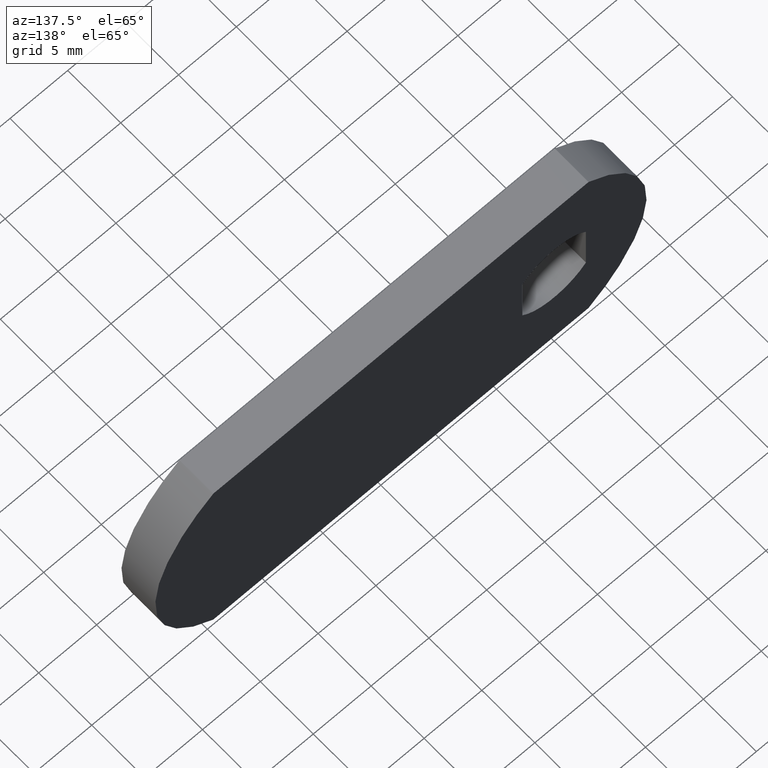
[diagram: clean part render]
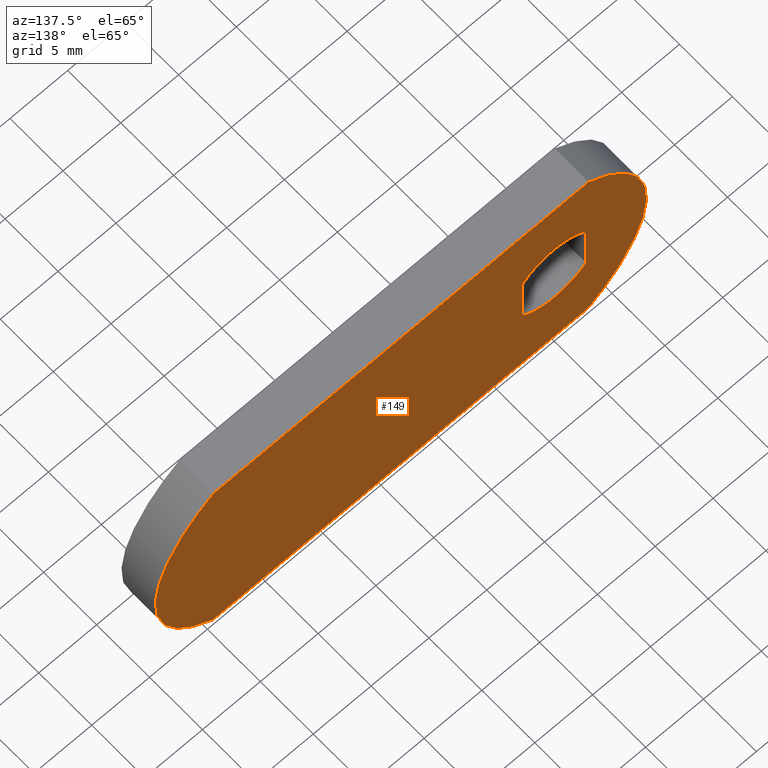
[diagram: same view with one face highlighted and labeled with its STEP entity id]
A machine part, auxiliary view. The second image highlights one B-rep face of the part: STEP entity #149.
In plain terms, the highlighted face is a freeform B-spline surface patch.
Its self-contained STEP definition (entity closure, byte-faithful):
#44=CARTESIAN_POINT('',(-10.122874917626749,0.0,10.449049963174311));
#45=CARTESIAN_POINT('',(36.622876057565577,0.0,10.449049963174311));
#46=CARTESIAN_POINT('',(-10.122874917626749,0.0,-10.449050472794029));
#47=CARTESIAN_POINT('',(36.622876057565577,0.0,-10.449050472794029));
#48=B_SPLINE_SURFACE_WITH_KNOTS('',1,1,((#44,#46),(#45,#47)),.UNSPECIFIED.,.F.,.F.,.U.,(2,2),(2,2),(0.0,46.745750975192337),(0.0,20.898100435968342),.UNSPECIFIED.);
#49=CARTESIAN_POINT('',(29.480740698407850,0.0,-9.500000000000000));
#50=VERTEX_POINT('',#49);
#51=CARTESIAN_POINT('',(29.480740698407850,0.0,9.500000000000000));
#52=VERTEX_POINT('',#51);
#53=CARTESIAN_POINT('',(29.480740698407850,0.0,-9.500000000000007));
#54=CARTESIAN_POINT('',(34.500000000000000,0.0,-6.075945470348388));
#55=CARTESIAN_POINT('',(34.500000000000000,0.0,0.0));
#56=CARTESIAN_POINT('',(34.500000000000000,0.0,6.075945470348382));
#57=CARTESIAN_POINT('',(29.480740698407860,0.0,9.500000000000002));
#65=(BOUNDED_CURVE()B_SPLINE_CURVE(2,(#53,#54,#55,#56,#57),.UNSPECIFIED.,.F.,.U.)B_SPLINE_CURVE_WITH_KNOTS((3,2,3),(0.0,0.500000000000000,1.0),.UNSPECIFIED.)CURVE()GEOMETRIC_REPRESENTATION_ITEM()RATIONAL_B_SPLINE_CURVE((1.0,0.884178338749251,1.0,0.884178338749251,1.0))REPRESENTATION_ITEM(''));
#66=EDGE_CURVE('',#50,#52,#65,.T.);
#67=ORIENTED_EDGE('',*,*,#66,.F.);
#68=CARTESIAN_POINT('',(-2.980740698407860,0.0,-9.500000000000000));
#69=VERTEX_POINT('',#68);
#70=CARTESIAN_POINT('',(-2.980740698407860,0.0,-9.500000000000000));
#71=CARTESIAN_POINT('',(29.480740698407850,0.0,-9.500000000000000));
#72=QUASI_UNIFORM_CURVE('',1,(#70,#71),.UNSPECIFIED.,.F.,.U.);
#73=EDGE_CURVE('',#69,#50,#72,.T.);
#74=ORIENTED_EDGE('',*,*,#73,.F.);
#75=CARTESIAN_POINT('',(-2.980740698407840,0.0,9.500000000000000));
#76=VERTEX_POINT('',#75);
#77=CARTESIAN_POINT('',(-2.980740698407848,0.0,9.500000000000007));
#78=CARTESIAN_POINT('',(-8.0,0.0,6.075945470348390));
#79=CARTESIAN_POINT('',(-8.0,0.0,0.0));
#80=CARTESIAN_POINT('',(-8.0,0.0,-6.075945470348378));
#81=CARTESIAN_POINT('',(-2.980740698407861,0.0,-9.499999999999998));
#89=(BOUNDED_CURVE()B_SPLINE_CURVE(2,(#77,#78,#79,#80,#81),.UNSPECIFIED.,.F.,.U.)B_SPLINE_CURVE_WITH_KNOTS((3,2,3),(0.0,0.500000000000000,1.0),.UNSPECIFIED.)CURVE()GEOMETRIC_REPRESENTATION_ITEM()RATIONAL_B_SPLINE_CURVE((1.0,0.884178338749251,1.0,0.884178338749251,1.0))REPRESENTATION_ITEM(''));
#90=EDGE_CURVE('',#76,#69,#89,.T.);
#91=ORIENTED_EDGE('',*,*,#90,.F.);
#92=CARTESIAN_POINT('',(29.480740698407850,0.0,9.500000000000000));
#93=CARTESIAN_POINT('',(-2.980740698407840,0.0,9.500000000000000));
#94=QUASI_UNIFORM_CURVE('',1,(#92,#93),.UNSPECIFIED.,.F.,.U.);
#95=EDGE_CURVE('',#52,#76,#94,.T.);
#96=ORIENTED_EDGE('',*,*,#95,.F.);
#97=EDGE_LOOP('',(#67,#74,#91,#96));
#98=FACE_OUTER_BOUND('',#97,.T.);
#99=CARTESIAN_POINT('',(2.750000000000000,0.0,2.323252031097775));
#100=VERTEX_POINT('',#99);
#101=CARTESIAN_POINT('',(-2.750000000000000,0.0,2.323252031097780));
#102=VERTEX_POINT('',#101);
#103=CARTESIAN_POINT('',(2.750000000000000,0.0,2.323252031097775));
#104=CARTESIAN_POINT('',(1.671379159290174,0.0,3.600000000000000));
#105=CARTESIAN_POINT('',(0.0,0.0,3.600000000000000));
#106=CARTESIAN_POINT('',(-1.671379159290171,0.0,3.600000000000000));
#107=CARTESIAN_POINT('',(-2.750000000000004,0.0,2.323252031097784));
#115=(BOUNDED_CURVE()B_SPLINE_CURVE(2,(#103,#104,#105,#106,#107),.UNSPECIFIED.,.F.,.U.)B_SPLINE_CURVE_WITH_KNOTS((3,2,3),(0.0,0.500000000000000,1.0),.UNSPECIFIED.)CURVE()GEOMETRIC_REPRESENTATION_ITEM()RATIONAL_B_SPLINE_CURVE((1.0,0.907013722723105,1.0,0.907013722723105,1.0))REPRESENTATION_ITEM(''));
#116=EDGE_CURVE('',#100,#102,#115,.T.);
#117=ORIENTED_EDGE('',*,*,#116,.T.);
#118=CARTESIAN_POINT('',(-2.750000000000000,0.0,-2.323252031097780));
#119=VERTEX_POINT('',#118);
#120=CARTESIAN_POINT('',(-2.750000000000000,0.0,2.323252031097780));
#121=CARTESIAN_POINT('',(-2.750000000000000,0.0,-2.323252031097780));
#122=QUASI_UNIFORM_CURVE('',1,(#120,#121),.UNSPECIFIED.,.F.,.U.);
#123=EDGE_CURVE('',#102,#119,#122,.T.);
#124=ORIENTED_EDGE('',*,*,#123,.T.);
#125=CARTESIAN_POINT('',(2.750000000000000,0.0,-2.323252031097775));
#126=VERTEX_POINT('',#125);
#127=CARTESIAN_POINT('',(-2.750000000000003,0.0,-2.323252031097785));
#128=CARTESIAN_POINT('',(-1.671379159290170,0.0,-3.600000000000001));
#129=CARTESIAN_POINT('',(0.0,0.0,-3.600000000000000));
#130=CARTESIAN_POINT('',(1.671379159290173,0.0,-3.600000000000001));
#131=CARTESIAN_POINT('',(2.750000000000006,0.0,-2.323252031097781));
#139=(BOUNDED_CURVE()B_SPLINE_CURVE(2,(#127,#128,#129,#130,#131),.UNSPECIFIED.,.F.,.U.)B_SPLINE_CURVE_WITH_KNOTS((3,2,3),(0.0,0.500000000000000,1.0),.UNSPECIFIED.)CURVE()GEOMETRIC_REPRESENTATION_ITEM()RATIONAL_B_SPLINE_CURVE((1.0,0.907013722723105,1.0,0.907013722723105,1.0))REPRESENTATION_ITEM(''));
#140=EDGE_CURVE('',#119,#126,#139,.T.);
#141=ORIENTED_EDGE('',*,*,#140,.T.);
#142=CARTESIAN_POINT('',(2.750000000000000,0.0,-2.323252031097775));
#143=CARTESIAN_POINT('',(2.750000000000000,0.0,2.323252031097775));
#144=QUASI_UNIFORM_CURVE('',1,(#142,#143),.UNSPECIFIED.,.F.,.U.);
#145=EDGE_CURVE('',#126,#100,#144,.T.);
#146=ORIENTED_EDGE('',*,*,#145,.T.);
#147=EDGE_LOOP('',(#117,#124,#141,#146));
#148=FACE_BOUND('',#147,.T.);
#149=ADVANCED_FACE('',(#98,#148),#48,.T.);